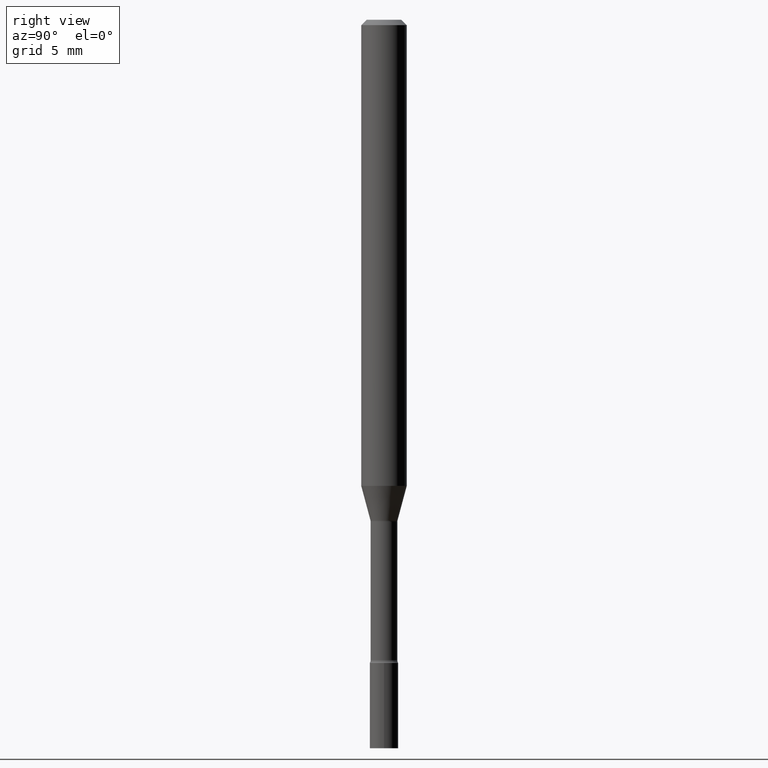
[diagram: clean part render]
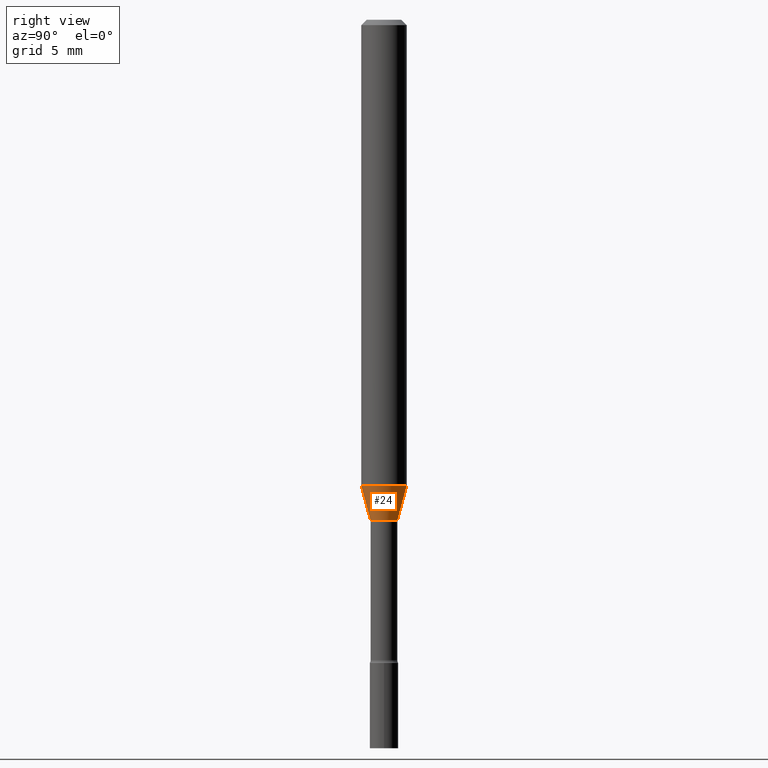
[diagram: same view with one face highlighted and labeled with its STEP entity id]
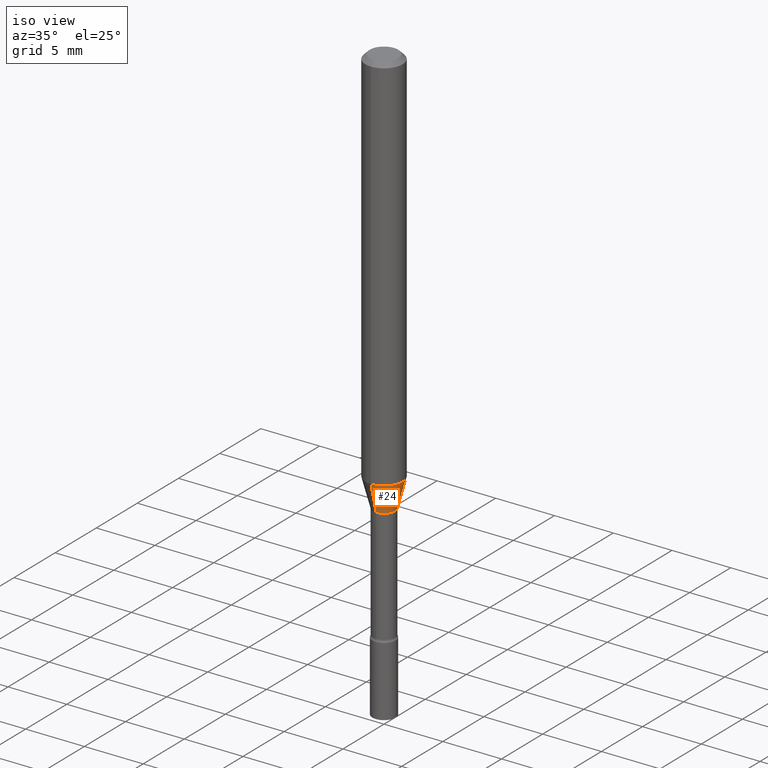
[diagram: same view with one face highlighted and labeled with its STEP entity id]
A machine part, right view. The second image highlights one B-rep face of the part: STEP entity #24.
A second angle (iso view) of the same face is appended — the face is thin or edge-on in the first view.
In plain terms, the highlighted conical surface has half-angle 15 deg.
Its self-contained STEP definition (entity closure, byte-faithful):
#9 = CARTESIAN_POINT ( 'NONE',  ( 3.129010783639058440E-29, -4.467487711346049103E-15, -1.279526486624344761 ) ) ;
#24 = ADVANCED_FACE ( 'NONE', ( #169 ), #155, .T. ) ;
#52 = VECTOR ( 'NONE', #323, 39.37007874015749564 ) ;
#73 = ORIENTED_EDGE ( 'NONE', *, *, #344, .T. ) ;
#112 = CIRCLE ( 'NONE', #463, 0.03716111260566398733 ) ;
#122 = EDGE_CURVE ( 'NONE', #402, #371, #214, .T. ) ;
#126 = EDGE_CURVE ( 'NONE', #410, #285, #112, .T. ) ;
#140 = CARTESIAN_POINT ( 'NONE',  ( 4.440892098500935790E-16, 0.06249999999999550360, -1.279526486624345205 ) ) ;
#143 = CARTESIAN_POINT ( 'NONE',  ( 3.540673979986520218E-16, 0.03716111260565919255, -1.374092501787273157 ) ) ;
#144 = LINE ( 'NONE', #312, #148 ) ;
#148 = VECTOR ( 'NONE', #355, 39.37007874015748143 ) ;
#155 = CONICAL_SURFACE ( 'NONE', #254, 0.03716111260566398733, 0.2617993877991501850 ) ;
#169 = FACE_OUTER_BOUND ( 'NONE', #374, .T. ) ;
#174 = DIRECTION ( 'NONE',  ( -2.445444323621651242E-29, 3.491516399267517644E-15, 1.000000000000000000 ) ) ;
#188 = CARTESIAN_POINT ( 'NONE',  ( -2.594946623866146563E-16, -0.03716111260566878904, -1.374092501787273157 ) ) ;
#214 = CIRCLE ( 'NONE', #255, 0.06250000000000000000 ) ;
#236 = LINE ( 'NONE', #321, #52 ) ;
#254 = AXIS2_PLACEMENT_3D ( 'NONE', #414, #333, #488 ) ;
#255 = AXIS2_PLACEMENT_3D ( 'NONE', #9, #174, #380 ) ;
#276 = ORIENTED_EDGE ( 'NONE', *, *, #314, .F. ) ;
#279 = ORIENTED_EDGE ( 'NONE', *, *, #122, .F. ) ;
#285 = VERTEX_POINT ( 'NONE', #143 ) ;
#306 = DIRECTION ( 'NONE',  ( -6.982962677686266711E-15, -1.000000000000000000, 0.000000000000000000 ) ) ;
#312 = CARTESIAN_POINT ( 'NONE',  ( 2.640455861472099224E-16, 0.03716111260565919255, -1.374092501787273157 ) ) ;
#314 = EDGE_CURVE ( 'NONE', #410, #402, #236, .T. ) ;
#321 = CARTESIAN_POINT ( 'NONE',  ( -2.594946623866146563E-16, -0.03716111260566878904, -1.374092501787273157 ) ) ;
#323 = DIRECTION ( 'NONE',  ( -1.807323732225329350E-15, -0.2588190451025180194, 0.9659258262890689783 ) ) ;
#333 = DIRECTION ( 'NONE',  ( -2.445444323621651242E-29, 3.491516399267517644E-15, 1.000000000000000000 ) ) ;
#344 = EDGE_CURVE ( 'NONE', #285, #371, #144, .T. ) ;
#346 = DIRECTION ( 'NONE',  ( -2.445444323621651242E-29, 3.491516399267517644E-15, 1.000000000000000000 ) ) ;
#355 = DIRECTION ( 'NONE',  ( 1.839019923739599526E-15, 0.2588190451025248473, 0.9659258262890670910 ) ) ;
#371 = VERTEX_POINT ( 'NONE', #140 ) ;
#374 = EDGE_LOOP ( 'NONE', ( #396, #73, #279, #276 ) ) ;
#380 = DIRECTION ( 'NONE',  ( -6.982962677686265922E-15, -1.000000000000000000, 4.370956789862821150E-15 ) ) ;
#393 = CARTESIAN_POINT ( 'NONE',  ( -4.364351673553606080E-16, -0.06250000000000449640, -1.279526486624344539 ) ) ;
#396 = ORIENTED_EDGE ( 'NONE', *, *, #126, .T. ) ;
#402 = VERTEX_POINT ( 'NONE', #393 ) ;
#410 = VERTEX_POINT ( 'NONE', #188 ) ;
#414 = CARTESIAN_POINT ( 'NONE',  ( 3.360266708626760851E-29, -4.797666504100794371E-15, -1.374092501787273157 ) ) ;
#433 = CARTESIAN_POINT ( 'NONE',  ( 3.360266708626760851E-29, -4.797666504100794371E-15, -1.374092501787273157 ) ) ;
#463 = AXIS2_PLACEMENT_3D ( 'NONE', #433, #346, #306 ) ;
#488 = DIRECTION ( 'NONE',  ( -6.982962677686266711E-15, -1.000000000000000000, 0.000000000000000000 ) ) ;